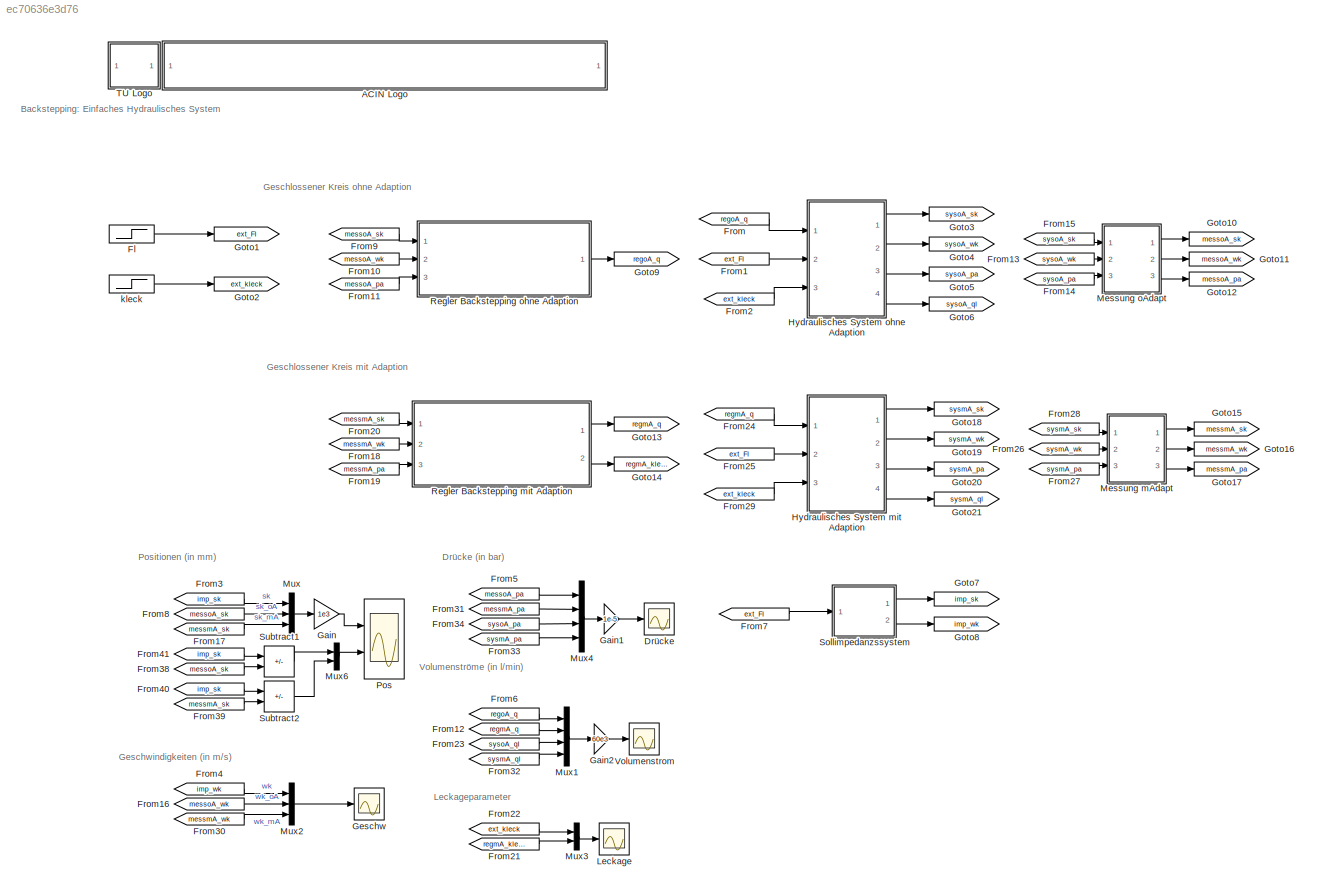
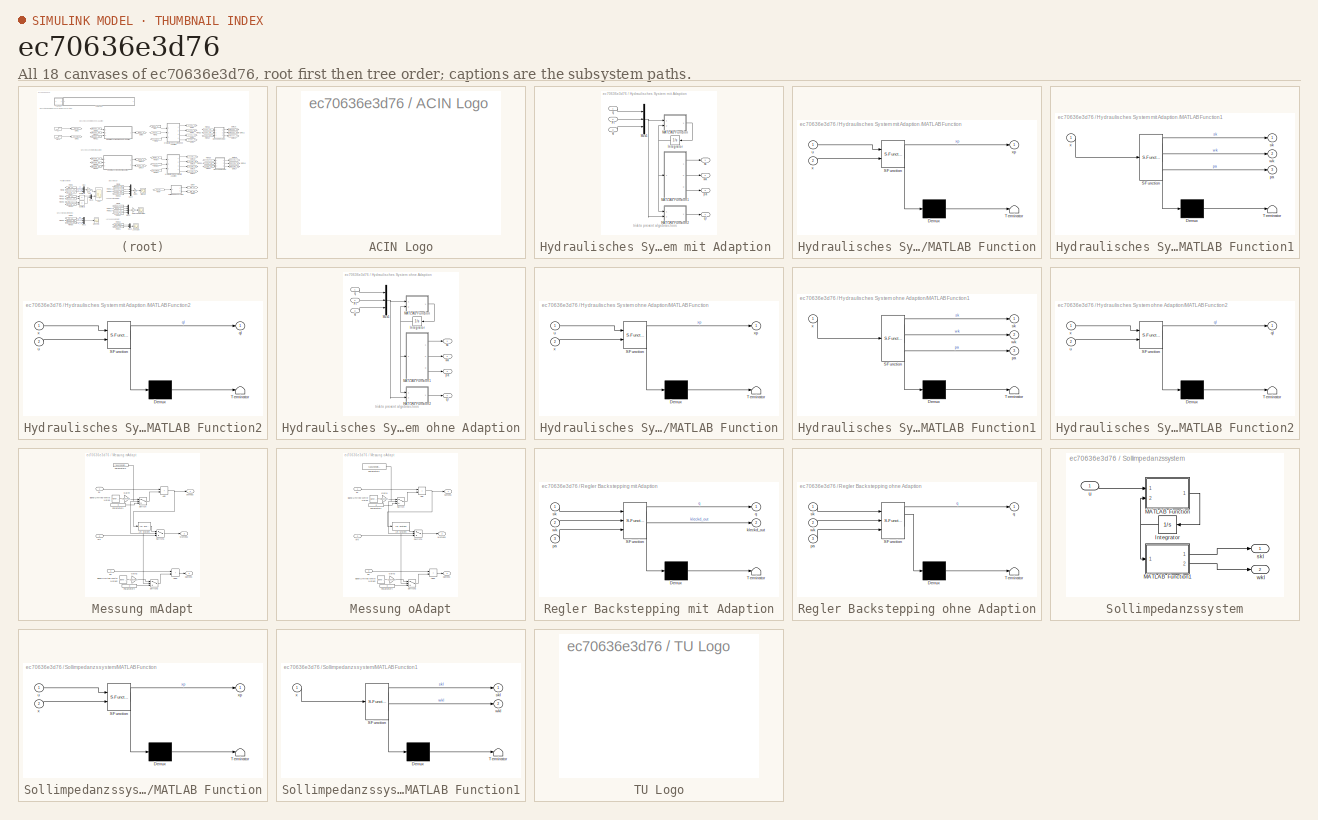
[diagram: thumbnail index - all 18 canvases of the model, root first then tree order]
MODEL slx_ec70636e3d76
KIND model
CONFIG AbsTol = 1e-5
CONFIG EnableMultiTasking = on
CONFIG FixedStep = auto
CONFIG MaxStep = auto
CONFIG MinStep = auto
CONFIG RelTol = 1e-6
CONFIG SampleTimeConstraint = Unconstrained
CONFIG SolverName = ode15s
CONFIG StartTime = 0.0
CONFIG StopTime = 10
BLOCK [SubSystem] ACIN Logo
  Ports = []
  RequestExecContextInheritance = off
  UserDataPersistent = on
BLOCK [Scope] Drücke
  Floating = off
  NumInputPorts = 1
  Ports = [1]
  ScopeSpecificationString = C++SS(StrPVP('Location','[5, 52, 1285, 993]'),StrPVP('Open','off'),MxPVP('AxesTitles',54,'struct(''axes1'',''%<SignalLabel>'')'),StrPVP('ShowLegends','off'),StrPVP('SaveName','ScopeData2'),StrPVP('DataFormat','StructureWithTime'),StrPVP('LimitDataPoints','off'),StrPVP('BlockParamSampleTime','0'),StrPVP('Decimation','1'),StrPVP('BlockParamSampleInput','off'))
BLOCK [Step] Fl
  After = 1e3
  SampleTime = 0
  Time = 3
BLOCK [From] From
  CloseFcn = tagdialog Close
  GotoTag = regoA_q
  TagVisibility = global
BLOCK [From] From1
  CloseFcn = tagdialog Close
  GotoTag = ext_Fl
  TagVisibility = global
BLOCK [From] From10
  CloseFcn = tagdialog Close
  GotoTag = messoA_wk
  TagVisibility = global
BLOCK [From] From11
  CloseFcn = tagdialog Close
  GotoTag = messoA_pa
  TagVisibility = global
BLOCK [From] From12
  CloseFcn = tagdialog Close
  GotoTag = regmA_q
  TagVisibility = global
BLOCK [From] From13
  CloseFcn = tagdialog Close
  GotoTag = sysoA_wk
  TagVisibility = global
BLOCK [From] From14
  CloseFcn = tagdialog Close
  GotoTag = sysoA_pa
  TagVisibility = global
BLOCK [From] From15
  CloseFcn = tagdialog Close
  GotoTag = sysoA_sk
  TagVisibility = global
BLOCK [From] From16
  CloseFcn = tagdialog Close
  GotoTag = messoA_wk
  TagVisibility = global
BLOCK [From] From17
  CloseFcn = tagdialog Close
  GotoTag = messmA_sk
  TagVisibility = global
BLOCK [From] From18
  CloseFcn = tagdialog Close
  GotoTag = messmA_wk
  TagVisibility = global
BLOCK [From] From19
  CloseFcn = tagdialog Close
  GotoTag = messmA_pa
  TagVisibility = global
BLOCK [From] From2
  CloseFcn = tagdialog Close
  GotoTag = ext_kleck
  TagVisibility = global
BLOCK [From] From20
  CloseFcn = tagdialog Close
  GotoTag = messmA_sk
  TagVisibility = global
BLOCK [From] From21
  CloseFcn = tagdialog Close
  GotoTag = regmA_kleckd
  TagVisibility = global
BLOCK [From] From22
  CloseFcn = tagdialog Close
  GotoTag = ext_kleck
  TagVisibility = global
BLOCK [From] From23
  CloseFcn = tagdialog Close
  GotoTag = sysoA_ql
  TagVisibility = global
BLOCK [From] From24
  CloseFcn = tagdialog Close
  GotoTag = regmA_q
  TagVisibility = global
BLOCK [From] From25
  CloseFcn = tagdialog Close
  GotoTag = ext_Fl
  TagVisibility = global
BLOCK [From] From26
  CloseFcn = tagdialog Close
  GotoTag = sysmA_wk
  TagVisibility = global
BLOCK [From] From27
  CloseFcn = tagdialog Close
  GotoTag = sysmA_pa
  TagVisibility = global
BLOCK [From] From28
  CloseFcn = tagdialog Close
  GotoTag = sysmA_sk
  TagVisibility = global
BLOCK [From] From29
  CloseFcn = tagdialog Close
  GotoTag = ext_kleck
  TagVisibility = global
BLOCK [From] From3
  CloseFcn = tagdialog Close
  GotoTag = imp_sk
  TagVisibility = global
BLOCK [From] From30
  CloseFcn = tagdialog Close
  GotoTag = messmA_wk
  TagVisibility = global
BLOCK [From] From31
  CloseFcn = tagdialog Close
  GotoTag = messmA_pa
  TagVisibility = global
BLOCK [From] From32
  CloseFcn = tagdialog Close
  GotoTag = sysmA_ql
  TagVisibility = global
BLOCK [From] From33
  CloseFcn = tagdialog Close
  GotoTag = sysmA_pa
  TagVisibility = global
BLOCK [From] From34
  CloseFcn = tagdialog Close
  GotoTag = sysoA_pa
  TagVisibility = global
BLOCK [From] From38
  CloseFcn = tagdialog Close
  GotoTag = messoA_sk
  TagVisibility = global
BLOCK [From] From39
  CloseFcn = tagdialog Close
  GotoTag = messmA_sk
  TagVisibility = global
BLOCK [From] From4
  CloseFcn = tagdialog Close
  GotoTag = imp_wk
  TagVisibility = global
BLOCK [From] From40
  CloseFcn = tagdialog Close
  GotoTag = imp_sk
  TagVisibility = global
BLOCK [From] From41
  CloseFcn = tagdialog Close
  GotoTag = imp_sk
  TagVisibility = global
BLOCK [From] From5
  CloseFcn = tagdialog Close
  GotoTag = messoA_pa
  TagVisibility = global
BLOCK [From] From6
  CloseFcn = tagdialog Close
  GotoTag = regoA_q
  TagVisibility = global
BLOCK [From] From7
  CloseFcn = tagdialog Close
  GotoTag = ext_Fl
  TagVisibility = global
BLOCK [From] From8
  CloseFcn = tagdialog Close
  GotoTag = messoA_sk
  TagVisibility = global
BLOCK [From] From9
  CloseFcn = tagdialog Close
  GotoTag = messoA_sk
  TagVisibility = global
BLOCK [Gain] Gain
  Gain = 1e3
BLOCK [Gain] Gain1
  Gain = 1e-5
BLOCK [Gain] Gain2
  Gain = 60e3
BLOCK [Scope] Geschw
  Floating = off
  NumInputPorts = 1
  Ports = [1]
  ScopeSpecificationString = Simulink.scopes.TimeScopeBlockCfg('CurrentConfiguration', extmgr.ConfigurationSet(extmgr.Configuration('Core','General UI',true),extmgr.Configuration('Core','Source UI',true),extmgr.Configuration('Sources','WiredSimulink',true,'DataLoggingVariableName','ScopeData1','DataLoggingSaveFormat','StructureWithTime','DataLoggingDecimation','1','DataLoggingDecimateData',true),extmgr.Configuration('Visuals'...<+1723ch>
BLOCK [Goto] Goto1
  GotoTag = ext_Fl
  TagVisibility = global
BLOCK [Goto] Goto10
  GotoTag = messoA_sk
  TagVisibility = global
BLOCK [Goto] Goto11
  GotoTag = messoA_wk
  TagVisibility = global
BLOCK [Goto] Goto12
  GotoTag = messoA_pa
  TagVisibility = global
BLOCK [Goto] Goto13
  GotoTag = regmA_q
  TagVisibility = global
BLOCK [Goto] Goto14
  GotoTag = regmA_kleckd
  TagVisibility = global
BLOCK [Goto] Goto15
  GotoTag = messmA_sk
  TagVisibility = global
BLOCK [Goto] Goto16
  GotoTag = messmA_wk
  TagVisibility = global
BLOCK [Goto] Goto17
  GotoTag = messmA_pa
  TagVisibility = global
BLOCK [Goto] Goto18
  GotoTag = sysmA_sk
  TagVisibility = global
BLOCK [Goto] Goto19
  GotoTag = sysmA_wk
  TagVisibility = global
BLOCK [Goto] Goto2
  GotoTag = ext_kleck
  TagVisibility = global
BLOCK [Goto] Goto20
  GotoTag = sysmA_pa
  TagVisibility = global
BLOCK [Goto] Goto21
  GotoTag = sysmA_ql
  TagVisibility = global
BLOCK [Goto] Goto3
  GotoTag = sysoA_sk
  TagVisibility = global
BLOCK [Goto] Goto4
  GotoTag = sysoA_wk
  TagVisibility = global
BLOCK [Goto] Goto5
  GotoTag = sysoA_pa
  TagVisibility = global
BLOCK [Goto] Goto6
  GotoTag = sysoA_ql
  TagVisibility = global
BLOCK [Goto] Goto7
  GotoTag = imp_sk
  TagVisibility = global
BLOCK [Goto] Goto8
  GotoTag = imp_wk
  TagVisibility = global
BLOCK [Goto] Goto9
  GotoTag = regoA_q
  TagVisibility = global
BLOCK [SubSystem] Hydraulisches System mit Adaption 
  Ports = [3, 4]
  RequestExecContextInheritance = off
BLOCK [Inport] Hydraulisches System mit Adaption /Fl
  Port = 2
BLOCK [Integrator] Hydraulisches System mit Adaption /Integrator
  InitialCondition = [parSys.sk0; parSys.wk0; parSys.pa0]
  Ports = [1, 1]
BLOCK [SubSystem] Hydraulisches System mit Adaption /MATLAB Function
  ErrorFcn = Stateflow.Translate.translate
  PermitHierarchicalResolution = ExplicitOnly
  Ports = [2, 1]
  RequestExecContextInheritance = off
  SFBlockType = MATLAB Function
  TreatAsAtomicUnit = on
BLOCK [Demux] Hydraulisches System mit Adaption /MATLAB Function/ Demux 
  Outputs = 1
  Ports = [1, 1]
BLOCK [S-Function] Hydraulisches System mit Adaption /MATLAB Function/ SFunction 
  EnableBusSupport = on
  FunctionName = sf_sfun
  Parameters = parSys
  PortCounts = [2 2]
  Ports = [2, 2]
  SFcnIsStateOwnerBlock = off
  SFunctionDeploymentMode = off
  Tag = Stateflow S-Function 3
BLOCK [Terminator] Hydraulisches System mit Adaption /MATLAB Function/ Terminator 
BLOCK [Inport] Hydraulisches System mit Adaption /MATLAB Function/u
BLOCK [Inport] Hydraulisches System mit Adaption /MATLAB Function/x
  Port = 2
BLOCK [Outport] Hydraulisches System mit Adaption /MATLAB Function/xp
BLOCK [SubSystem] Hydraulisches System mit Adaption /MATLAB Function1
  ErrorFcn = Stateflow.Translate.translate
  PermitHierarchicalResolution = ExplicitOnly
  Ports = [1, 3]
  RequestExecContextInheritance = off
  SFBlockType = MATLAB Function
  TreatAsAtomicUnit = on
BLOCK [Demux] Hydraulisches System mit Adaption /MATLAB Function1/ Demux 
  Outputs = 1
  Ports = [1, 1]
BLOCK [S-Function] Hydraulisches System mit Adaption /MATLAB Function1/ SFunction 
  EnableBusSupport = on
  FunctionName = sf_sfun
  Parameters = parSys
  PortCounts = [1 4]
  Ports = [1, 4]
  SFcnIsStateOwnerBlock = off
  SFunctionDeploymentMode = off
  Tag = Stateflow S-Function 4
BLOCK [Terminator] Hydraulisches System mit Adaption /MATLAB Function1/ Terminator 
BLOCK [Outport] Hydraulisches System mit Adaption /MATLAB Function1/pa
  Port = 3
BLOCK [Outport] Hydraulisches System mit Adaption /MATLAB Function1/sk
BLOCK [Outport] Hydraulisches System mit Adaption /MATLAB Function1/wk
  Port = 2
BLOCK [Inport] Hydraulisches System mit Adaption /MATLAB Function1/x
BLOCK [SubSystem] Hydraulisches System mit Adaption /MATLAB Function2
  ErrorFcn = Stateflow.Translate.translate
  PermitHierarchicalResolution = ExplicitOnly
  Ports = [2, 1]
  RequestExecContextInheritance = off
  SFBlockType = MATLAB Function
  TreatAsAtomicUnit = on
BLOCK [Demux] Hydraulisches System mit Adaption /MATLAB Function2/ Demux 
  Outputs = 1
  Ports = [1, 1]
BLOCK [S-Function] Hydraulisches System mit Adaption /MATLAB Function2/ SFunction 
  EnableBusSupport = on
  FunctionName = sf_sfun
  Parameters = parSys
  PortCounts = [2 2]
  Ports = [2, 2]
  SFcnIsStateOwnerBlock = off
  SFunctionDeploymentMode = off
  Tag = Stateflow S-Function 7
BLOCK [Terminator] Hydraulisches System mit Adaption /MATLAB Function2/ Terminator 
BLOCK [Outport] Hydraulisches System mit Adaption /MATLAB Function2/ql
BLOCK [Inport] Hydraulisches System mit Adaption /MATLAB Function2/u
  Port = 2
BLOCK [Inport] Hydraulisches System mit Adaption /MATLAB Function2/x
BLOCK [Mux] Hydraulisches System mit Adaption /Mux5
  DisplayOption = bar
  Inputs = 3
  Ports = [3, 1]
BLOCK [Inport] Hydraulisches System mit Adaption /kl
  Port = 3
BLOCK [Outport] Hydraulisches System mit Adaption /pa
  Port = 3
BLOCK [Inport] Hydraulisches System mit Adaption /q
BLOCK [Outport] Hydraulisches System mit Adaption /ql
  Port = 4
BLOCK [Outport] Hydraulisches System mit Adaption /sk
BLOCK [Outport] Hydraulisches System mit Adaption /wk
  Port = 2
BLOCK [SubSystem] Hydraulisches System ohne Adaption
  Ports = [3, 4]
  RequestExecContextInheritance = off
BLOCK [Inport] Hydraulisches System ohne Adaption/Fl
  Port = 2
BLOCK [Integrator] Hydraulisches System ohne Adaption/Integrator
  InitialCondition = [parSys.sk0; parSys.wk0; parSys.pa0]
  Ports = [1, 1]
BLOCK [SubSystem] Hydraulisches System ohne Adaption/MATLAB Function
  ErrorFcn = Stateflow.Translate.translate
  PermitHierarchicalResolution = ExplicitOnly
  Ports = [2, 1]
  RequestExecContextInheritance = off
  SFBlockType = MATLAB Function
  TreatAsAtomicUnit = on
BLOCK [Demux] Hydraulisches System ohne Adaption/MATLAB Function/ Demux 
  Outputs = 1
  Ports = [1, 1]
BLOCK [S-Function] Hydraulisches System ohne Adaption/MATLAB Function/ SFunction 
  EnableBusSupport = on
  FunctionName = sf_sfun
  Parameters = parSys
  PortCounts = [2 2]
  Ports = [2, 2]
  SFcnIsStateOwnerBlock = off
  SFunctionDeploymentMode = off
  Tag = Stateflow S-Function 5
BLOCK [Terminator] Hydraulisches System ohne Adaption/MATLAB Function/ Terminator 
BLOCK [Inport] Hydraulisches System ohne Adaption/MATLAB Function/u
BLOCK [Inport] Hydraulisches System ohne Adaption/MATLAB Function/x
  Port = 2
BLOCK [Outport] Hydraulisches System ohne Adaption/MATLAB Function/xp
BLOCK [SubSystem] Hydraulisches System ohne Adaption/MATLAB Function1
  ErrorFcn = Stateflow.Translate.translate
  PermitHierarchicalResolution = ExplicitOnly
  Ports = [1, 3]
  RequestExecContextInheritance = off
  SFBlockType = MATLAB Function
  TreatAsAtomicUnit = on
BLOCK [Demux] Hydraulisches System ohne Adaption/MATLAB Function1/ Demux 
  Outputs = 1
  Ports = [1, 1]
BLOCK [S-Function] Hydraulisches System ohne Adaption/MATLAB Function1/ SFunction 
  EnableBusSupport = on
  FunctionName = sf_sfun
  Parameters = parSys
  PortCounts = [1 4]
  Ports = [1, 4]
  SFcnIsStateOwnerBlock = off
  SFunctionDeploymentMode = off
  Tag = Stateflow S-Function 6
BLOCK [Terminator] Hydraulisches System ohne Adaption/MATLAB Function1/ Terminator 
BLOCK [Outport] Hydraulisches System ohne Adaption/MATLAB Function1/pa
  Port = 3
BLOCK [Outport] Hydraulisches System ohne Adaption/MATLAB Function1/sk
BLOCK [Outport] Hydraulisches System ohne Adaption/MATLAB Function1/wk
  Port = 2
BLOCK [Inport] Hydraulisches System ohne Adaption/MATLAB Function1/x
BLOCK [SubSystem] Hydraulisches System ohne Adaption/MATLAB Function2
  ErrorFcn = Stateflow.Translate.translate
  PermitHierarchicalResolution = ExplicitOnly
  Ports = [2, 1]
  RequestExecContextInheritance = off
  SFBlockType = MATLAB Function
  TreatAsAtomicUnit = on
BLOCK [Demux] Hydraulisches System ohne Adaption/MATLAB Function2/ Demux 
  Outputs = 1
  Ports = [1, 1]
BLOCK [S-Function] Hydraulisches System ohne Adaption/MATLAB Function2/ SFunction 
  EnableBusSupport = on
  FunctionName = sf_sfun
  Parameters = parSys
  PortCounts = [2 2]
  Ports = [2, 2]
  SFcnIsStateOwnerBlock = off
  SFunctionDeploymentMode = off
  Tag = Stateflow S-Function 8
BLOCK [Terminator] Hydraulisches System ohne Adaption/MATLAB Function2/ Terminator 
BLOCK [Outport] Hydraulisches System ohne Adaption/MATLAB Function2/ql
BLOCK [Inport] Hydraulisches System ohne Adaption/MATLAB Function2/u
  Port = 2
BLOCK [Inport] Hydraulisches System ohne Adaption/MATLAB Function2/x
BLOCK [Mux] Hydraulisches System ohne Adaption/Mux5
  DisplayOption = bar
  Inputs = 3
  Ports = [3, 1]
BLOCK [Inport] Hydraulisches System ohne Adaption/kl
  Port = 3
BLOCK [Outport] Hydraulisches System ohne Adaption/pa
  Port = 3
BLOCK [Inport] Hydraulisches System ohne Adaption/q
BLOCK [Outport] Hydraulisches System ohne Adaption/ql
  Port = 4
BLOCK [Outport] Hydraulisches System ohne Adaption/sk
BLOCK [Outport] Hydraulisches System ohne Adaption/wk
  Port = 2
BLOCK [Scope] Leckage
  Floating = off
  NumInputPorts = 1
  Ports = [1]
  ScopeSpecificationString = Simulink.scopes.TimeScopeBlockCfg('CurrentConfiguration', extmgr.ConfigurationSet(extmgr.Configuration('Core','General UI',true),extmgr.Configuration('Core','Source UI',true),extmgr.Configuration('Sources','WiredSimulink',true,'DataLoggingVariableName','ScopeData8','DataLoggingSaveFormat','StructureWithTime','DataLoggingDecimation','1','DataLoggingDecimateData',true),extmgr.Configuration('Visuals'...<+1750ch>
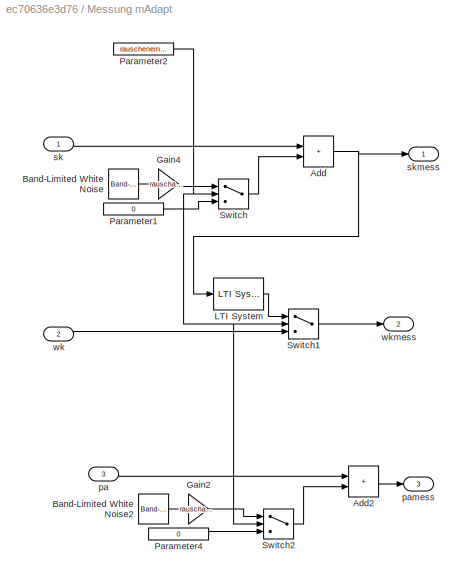
BLOCK [SubSystem] Messung mAdapt
  Ports = [3, 3]
  RequestExecContextInheritance = off
BLOCK [Sum] Messung mAdapt/Add
  IconShape = rectangular
  Ports = [2, 1]
BLOCK [Sum] Messung mAdapt/Add2
  IconShape = rectangular
  Ports = [2, 1]
BLOCK [Reference] Messung mAdapt/Band-Limited White Noise  REF=simulink/Sources/Band-Limited
White Noise
  Ports = [0, 1]
  SourceBlock = simulink/Sources/Band-Limited\nWhite Noise
  SourceProductBaseCode = SL
  SourceType = Band-Limited White Noise.
BLOCK [Reference] Messung mAdapt/Band-Limited White Noise2  REF=simulink/Sources/Band-Limited
White Noise
  Ports = [0, 1]
  SourceBlock = simulink/Sources/Band-Limited\nWhite Noise
  SourceProductBaseCode = SL
  SourceType = Band-Limited White Noise.
BLOCK [Gain] Messung mAdapt/Gain2
  Gain = rauschampl_pa
BLOCK [Gain] Messung mAdapt/Gain4
  Gain = rauschampl_sk
BLOCK [Reference] Messung mAdapt/LTI System  REF=cstblocks/LTI System
  Ports = [1, 1]
  SourceBlock = cstblocks/LTI System
  SourceProductBaseCode = CT
  SourceType = LTI Block
BLOCK [Constant] Messung mAdapt/Parameter1
  Value = 0
  VectorParams1D = off
BLOCK [Constant] Messung mAdapt/Parameter2
  Value = rauschenein_par
  VectorParams1D = off
BLOCK [Constant] Messung mAdapt/Parameter4
  Value = 0
  VectorParams1D = off
BLOCK [Switch] Messung mAdapt/Switch
  InputSameDT = off
  SaturateOnIntegerOverflow = off
  Threshold = 0.5
BLOCK [Switch] Messung mAdapt/Switch1
  InputSameDT = off
  SaturateOnIntegerOverflow = off
  Threshold = 0.5
BLOCK [Switch] Messung mAdapt/Switch2
  InputSameDT = off
  SaturateOnIntegerOverflow = off
  Threshold = 0.5
BLOCK [Inport] Messung mAdapt/pa
  Port = 3
BLOCK [Outport] Messung mAdapt/pamess
  Port = 3
BLOCK [Inport] Messung mAdapt/sk
BLOCK [Outport] Messung mAdapt/skmess
BLOCK [Inport] Messung mAdapt/wk
  Port = 2
BLOCK [Outport] Messung mAdapt/wkmess
  Port = 2
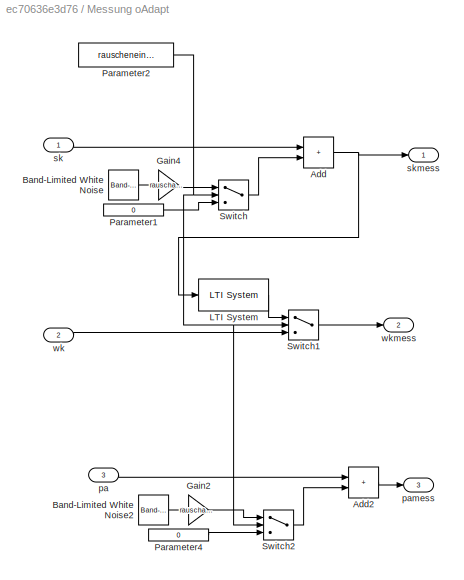
BLOCK [SubSystem] Messung oAdapt
  Ports = [3, 3]
  RequestExecContextInheritance = off
BLOCK [Sum] Messung oAdapt/Add
  IconShape = rectangular
  Ports = [2, 1]
BLOCK [Sum] Messung oAdapt/Add2
  IconShape = rectangular
  Ports = [2, 1]
BLOCK [Reference] Messung oAdapt/Band-Limited White Noise  REF=simulink/Sources/Band-Limited
White Noise
  Ports = [0, 1]
  SourceBlock = simulink/Sources/Band-Limited\nWhite Noise
  SourceProductBaseCode = SL
  SourceType = Band-Limited White Noise.
BLOCK [Reference] Messung oAdapt/Band-Limited White Noise2  REF=simulink/Sources/Band-Limited
White Noise
  Ports = [0, 1]
  SourceBlock = simulink/Sources/Band-Limited\nWhite Noise
  SourceProductBaseCode = SL
  SourceType = Band-Limited White Noise.
BLOCK [Gain] Messung oAdapt/Gain2
  Gain = rauschampl_pa
BLOCK [Gain] Messung oAdapt/Gain4
  Gain = rauschampl_sk
BLOCK [Reference] Messung oAdapt/LTI System  REF=cstblocks/LTI System
  Ports = [1, 1]
  SourceBlock = cstblocks/LTI System
  SourceProductBaseCode = CT
  SourceType = LTI Block
BLOCK [Constant] Messung oAdapt/Parameter1
  Value = 0
  VectorParams1D = off
BLOCK [Constant] Messung oAdapt/Parameter2
  Value = rauschenein_par
  VectorParams1D = off
BLOCK [Constant] Messung oAdapt/Parameter4
  Value = 0
  VectorParams1D = off
BLOCK [Switch] Messung oAdapt/Switch
  InputSameDT = off
  SaturateOnIntegerOverflow = off
  Threshold = 0.5
BLOCK [Switch] Messung oAdapt/Switch1
  InputSameDT = off
  SaturateOnIntegerOverflow = off
  Threshold = 0.5
BLOCK [Switch] Messung oAdapt/Switch2
  InputSameDT = off
  SaturateOnIntegerOverflow = off
  Threshold = 0.5
BLOCK [Inport] Messung oAdapt/pa
  Port = 3
BLOCK [Outport] Messung oAdapt/pamess
  Port = 3
BLOCK [Inport] Messung oAdapt/sk
BLOCK [Outport] Messung oAdapt/skmess
BLOCK [Inport] Messung oAdapt/wk
  Port = 2
BLOCK [Outport] Messung oAdapt/wkmess
  Port = 2
BLOCK [Mux] Mux
  DisplayOption = bar
  Inputs = 3
  Ports = [3, 1]
BLOCK [Mux] Mux1
  DisplayOption = bar
  Ports = [4, 1]
BLOCK [Mux] Mux2
  DisplayOption = bar
  Inputs = 3
  Ports = [3, 1]
BLOCK [Mux] Mux3
  DisplayOption = bar
  Inputs = 2
  Ports = [2, 1]
BLOCK [Mux] Mux4
  DisplayOption = bar
  Ports = [4, 1]
BLOCK [Mux] Mux6
  DisplayOption = bar
  Inputs = 2
  Ports = [2, 1]
BLOCK [Scope] Pos
  Floating = off
  NumInputPorts = 2
  Ports = [2]
  ScopeSpecificationString = Simulink.scopes.TimeScopeBlockCfg('CurrentConfiguration', extmgr.ConfigurationSet(extmgr.Configuration('Core','General UI',true),extmgr.Configuration('Core','Source UI',true),extmgr.Configuration('Sources','WiredSimulink',true,'DataLoggingSaveFormat','StructureWithTime','DataLoggingDecimation','1','DataLoggingDecimateData',true),extmgr.Configuration('Visuals','Time Domain',true,'SerializedDisplays...<+2383ch>
BLOCK [SubSystem] Regler Backstepping mit Adaption
  ErrorFcn = Stateflow.Translate.translate
  PermitHierarchicalResolution = ExplicitOnly
  Ports = [3, 2]
  RequestExecContextInheritance = off
  SFBlockType = MATLAB Function
BLOCK [Demux] Regler Backstepping mit Adaption/ Demux 
  Outputs = 1
  Ports = [1, 1]
BLOCK [S-Function] Regler Backstepping mit Adaption/ SFunction 
  EnableBusSupport = on
  FunctionName = sf_sfun
  Parameters = parImp,parRegA,parSys
  PortCounts = [3 3]
  Ports = [3, 3]
  SFcnIsStateOwnerBlock = off
  SFunctionDeploymentMode = off
  Tag = Stateflow S-Function 1
BLOCK [Terminator] Regler Backstepping mit Adaption/ Terminator 
BLOCK [Outport] Regler Backstepping mit Adaption/kleckd_out
  Port = 2
BLOCK [Inport] Regler Backstepping mit Adaption/pa
  Port = 3
BLOCK [Outport] Regler Backstepping mit Adaption/q
BLOCK [Inport] Regler Backstepping mit Adaption/sk
BLOCK [Inport] Regler Backstepping mit Adaption/wk
  Port = 2
BLOCK [SubSystem] Regler Backstepping ohne Adaption
  ErrorFcn = Stateflow.Translate.translate
  PermitHierarchicalResolution = ExplicitOnly
  Ports = [3, 1]
  RequestExecContextInheritance = off
  SFBlockType = MATLAB Function
  TreatAsAtomicUnit = on
BLOCK [Demux] Regler Backstepping ohne Adaption/ Demux 
  Outputs = 1
  Ports = [1, 1]
BLOCK [S-Function] Regler Backstepping ohne Adaption/ SFunction 
  EnableBusSupport = on
  FunctionName = sf_sfun
  Parameters = parImp,parRegoA,parSys
  PortCounts = [3 2]
  Ports = [3, 2]
  SFcnIsStateOwnerBlock = off
  SFunctionDeploymentMode = off
  Tag = Stateflow S-Function 2
BLOCK [Terminator] Regler Backstepping ohne Adaption/ Terminator 
BLOCK [Inport] Regler Backstepping ohne Adaption/pa
  Port = 3
BLOCK [Outport] Regler Backstepping ohne Adaption/q
BLOCK [Inport] Regler Backstepping ohne Adaption/sk
BLOCK [Inport] Regler Backstepping ohne Adaption/wk
  Port = 2
BLOCK [SubSystem] Sollimpedanzssystem
  Ports = [1, 2]
  RequestExecContextInheritance = off
BLOCK [Integrator] Sollimpedanzssystem/Integrator
  InitialCondition = [parSys.sk0; parSys.wk0]
  Ports = [1, 1]
BLOCK [SubSystem] Sollimpedanzssystem/MATLAB Function
  ErrorFcn = Stateflow.Translate.translate
  PermitHierarchicalResolution = ExplicitOnly
  Ports = [2, 1]
  RequestExecContextInheritance = off
  SFBlockType = MATLAB Function
  TreatAsAtomicUnit = on
BLOCK [Demux] Sollimpedanzssystem/MATLAB Function/ Demux 
  Outputs = 1
  Ports = [1, 1]
BLOCK [S-Function] Sollimpedanzssystem/MATLAB Function/ SFunction 
  EnableBusSupport = on
  FunctionName = sf_sfun
  Parameters = parImp,parSys
  PortCounts = [2 2]
  Ports = [2, 2]
  SFcnIsStateOwnerBlock = off
  SFunctionDeploymentMode = off
  Tag = Stateflow S-Function 11
BLOCK [Terminator] Sollimpedanzssystem/MATLAB Function/ Terminator 
BLOCK [Inport] Sollimpedanzssystem/MATLAB Function/u
BLOCK [Inport] Sollimpedanzssystem/MATLAB Function/x
  Port = 2
BLOCK [Outport] Sollimpedanzssystem/MATLAB Function/xp
BLOCK [SubSystem] Sollimpedanzssystem/MATLAB Function1
  ErrorFcn = Stateflow.Translate.translate
  PermitHierarchicalResolution = ExplicitOnly
  Ports = [1, 2]
  RequestExecContextInheritance = off
  SFBlockType = MATLAB Function
  TreatAsAtomicUnit = on
BLOCK [Demux] Sollimpedanzssystem/MATLAB Function1/ Demux 
  Outputs = 1
  Ports = [1, 1]
BLOCK [S-Function] Sollimpedanzssystem/MATLAB Function1/ SFunction 
  EnableBusSupport = on
  FunctionName = sf_sfun
  PortCounts = [1 3]
  Ports = [1, 3]
  SFcnIsStateOwnerBlock = off
  SFunctionDeploymentMode = off
  Tag = Stateflow S-Function 12
BLOCK [Terminator] Sollimpedanzssystem/MATLAB Function1/ Terminator 
BLOCK [Outport] Sollimpedanzssystem/MATLAB Function1/skl
BLOCK [Outport] Sollimpedanzssystem/MATLAB Function1/wkl
  Port = 2
BLOCK [Inport] Sollimpedanzssystem/MATLAB Function1/x
BLOCK [Outport] Sollimpedanzssystem/skl
BLOCK [Inport] Sollimpedanzssystem/u
BLOCK [Outport] Sollimpedanzssystem/wkl
  Port = 2
BLOCK [Sum] Subtract1
  IconShape = rectangular
  Inputs = +-
  Ports = [2, 1]
BLOCK [Sum] Subtract2
  IconShape = rectangular
  Inputs = +-
  Ports = [2, 1]
BLOCK [SubSystem] TU Logo
  Ports = []
  RequestExecContextInheritance = off
  UserDataPersistent = on
BLOCK [Scope] Volumenstrom
  Floating = off
  NumInputPorts = 1
  Ports = [1]
  ScopeSpecificationString = Simulink.scopes.TimeScopeBlockCfg('CurrentConfiguration', extmgr.ConfigurationSet(extmgr.Configuration('Core','General UI',true),extmgr.Configuration('Core','Source UI',true),extmgr.Configuration('Sources','WiredSimulink',true,'DataLoggingVariableName','ScopeData3','DataLoggingSaveFormat','StructureWithTime','DataLoggingDecimation','1','DataLoggingDecimateData',true),extmgr.Configuration('Visuals'...<+1702ch>
BLOCK [Step] kleck
  After = parSys.klecknom
  Before = parSys.klecknom*1
  SampleTime = 0
ANNOTATION (root): Backstepping: Einfaches Hydraulisches System
ANNOTATION (root): Drücke (in bar)
ANNOTATION (root): Geschlossener Kreis mit Adaption
ANNOTATION (root): Geschlossener Kreis ohne Adaption
ANNOTATION (root): Geschwindigkeiten (in m/s)
ANNOTATION (root): Leckageparameter
ANNOTATION (root): Positionen (in mm)
ANNOTATION (root): Volumenströme (in l/min)
ANNOTATION Hydraulisches System mit Adaption : trick to prevent algebraic loos
ANNOTATION Hydraulisches System ohne Adaption: trick to prevent algebraic loos
LINE Fl:1 -> Goto1:1
LINE From10:1 -> Regler Backstepping ohne Adaption:2
LINE From11:1 -> Regler Backstepping ohne Adaption:3
LINE From12:1 -> Mux1:2
LINE From13:1 -> Messung oAdapt:2
LINE From14:1 -> Messung oAdapt:3
LINE From15:1 -> Messung oAdapt:1
LINE From16:1 -> Mux2:2
LINE From17:1 -> Mux:3
LINE From18:1 -> Regler Backstepping mit Adaption:2
LINE From19:1 -> Regler Backstepping mit Adaption:3
LINE From1:1 -> Hydraulisches System ohne Adaption:2
LINE From20:1 -> Regler Backstepping mit Adaption:1
LINE From21:1 -> Mux3:2
LINE From22:1 -> Mux3:1
LINE From23:1 -> Mux1:3
LINE From24:1 -> Hydraulisches System mit Adaption :1
LINE From25:1 -> Hydraulisches System mit Adaption :2
LINE From26:1 -> Messung mAdapt:2
LINE From27:1 -> Messung mAdapt:3
LINE From28:1 -> Messung mAdapt:1
LINE From29:1 -> Hydraulisches System mit Adaption :3
LINE From2:1 -> Hydraulisches System ohne Adaption:3
LINE From30:1 -> Mux2:3
LINE From31:1 -> Mux4:2
LINE From32:1 -> Mux1:4
LINE From33:1 -> Mux4:4
LINE From34:1 -> Mux4:3
LINE From38:1 -> Subtract1:2
LINE From39:1 -> Subtract2:2
LINE From3:1 -> Mux:1
LINE From40:1 -> Subtract2:1
LINE From41:1 -> Subtract1:1
LINE From4:1 -> Mux2:1
LINE From5:1 -> Mux4:1
LINE From6:1 -> Mux1:1
LINE From7:1 -> Sollimpedanzssystem:1
LINE From8:1 -> Mux:2
LINE From9:1 -> Regler Backstepping ohne Adaption:1
LINE From:1 -> Hydraulisches System ohne Adaption:1
LINE Gain1:1 -> Drücke:1
LINE Gain2:1 -> Volumenstrom:1
LINE Gain:1 -> Pos:1
LINE Hydraulisches System mit Adaption /Fl:1 -> Hydraulisches System mit Adaption /Mux5:2
NET Hydraulisches System mit Adaption /Integrator:1 -> Hydraulisches System mit Adaption /MATLAB Function1:1, Hydraulisches System mit Adaption /MATLAB Function2:1, Hydraulisches System mit Adaption /MATLAB Function:2
LINE Hydraulisches System mit Adaption /MATLAB Function1:1 -> Hydraulisches System mit Adaption /sk:1
LINE Hydraulisches System mit Adaption /MATLAB Function1:2 -> Hydraulisches System mit Adaption /wk:1
LINE Hydraulisches System mit Adaption /MATLAB Function1:3 -> Hydraulisches System mit Adaption /pa:1
LINE Hydraulisches System mit Adaption /MATLAB Function2:1 -> Hydraulisches System mit Adaption /ql:1
LINE Hydraulisches System mit Adaption /MATLAB Function:1 -> Hydraulisches System mit Adaption /Integrator:1
NET Hydraulisches System mit Adaption /Mux5:1 -> Hydraulisches System mit Adaption /MATLAB Function2:2, Hydraulisches System mit Adaption /MATLAB Function:1
LINE Hydraulisches System mit Adaption /kl:1 -> Hydraulisches System mit Adaption /Mux5:3
LINE Hydraulisches System mit Adaption /q:1 -> Hydraulisches System mit Adaption /Mux5:1
LINE Hydraulisches System mit Adaption :1 -> Goto18:1
LINE Hydraulisches System mit Adaption :2 -> Goto19:1
LINE Hydraulisches System mit Adaption :3 -> Goto20:1
LINE Hydraulisches System mit Adaption :4 -> Goto21:1
LINE Hydraulisches System ohne Adaption/Fl:1 -> Hydraulisches System ohne Adaption/Mux5:2
NET Hydraulisches System ohne Adaption/Integrator:1 -> Hydraulisches System ohne Adaption/MATLAB Function1:1, Hydraulisches System ohne Adaption/MATLAB Function2:1, Hydraulisches System ohne Adaption/MATLAB Function:2
LINE Hydraulisches System ohne Adaption/MATLAB Function1:1 -> Hydraulisches System ohne Adaption/sk:1
LINE Hydraulisches System ohne Adaption/MATLAB Function1:2 -> Hydraulisches System ohne Adaption/wk:1
LINE Hydraulisches System ohne Adaption/MATLAB Function1:3 -> Hydraulisches System ohne Adaption/pa:1
LINE Hydraulisches System ohne Adaption/MATLAB Function2:1 -> Hydraulisches System ohne Adaption/ql:1
LINE Hydraulisches System ohne Adaption/MATLAB Function:1 -> Hydraulisches System ohne Adaption/Integrator:1
NET Hydraulisches System ohne Adaption/Mux5:1 -> Hydraulisches System ohne Adaption/MATLAB Function2:2, Hydraulisches System ohne Adaption/MATLAB Function:1
LINE Hydraulisches System ohne Adaption/kl:1 -> Hydraulisches System ohne Adaption/Mux5:3
LINE Hydraulisches System ohne Adaption/q:1 -> Hydraulisches System ohne Adaption/Mux5:1
LINE Hydraulisches System ohne Adaption:1 -> Goto3:1
LINE Hydraulisches System ohne Adaption:2 -> Goto4:1
LINE Hydraulisches System ohne Adaption:3 -> Goto5:1
LINE Hydraulisches System ohne Adaption:4 -> Goto6:1
LINE Messung mAdapt/Add2:1 -> Messung mAdapt/pamess:1
NET Messung mAdapt/Add:1 -> Messung mAdapt/LTI System:1, Messung mAdapt/skmess:1
LINE Messung mAdapt/Band-Limited White Noise2:1 -> Messung mAdapt/Gain2:1
LINE Messung mAdapt/Band-Limited White Noise:1 -> Messung mAdapt/Gain4:1
LINE Messung mAdapt/Gain2:1 -> Messung mAdapt/Switch2:1
LINE Messung mAdapt/Gain4:1 -> Messung mAdapt/Switch:1
LINE Messung mAdapt/LTI System:1 -> Messung mAdapt/Switch1:1
LINE Messung mAdapt/Parameter1:1 -> Messung mAdapt/Switch:3
NET Messung mAdapt/Parameter2:1 -> Messung mAdapt/Switch1:2, Messung mAdapt/Switch2:2, Messung mAdapt/Switch:2
LINE Messung mAdapt/Parameter4:1 -> Messung mAdapt/Switch2:3
LINE Messung mAdapt/Switch1:1 -> Messung mAdapt/wkmess:1
LINE Messung mAdapt/Switch2:1 -> Messung mAdapt/Add2:2
LINE Messung mAdapt/Switch:1 -> Messung mAdapt/Add:2
LINE Messung mAdapt/pa:1 -> Messung mAdapt/Add2:1
LINE Messung mAdapt/sk:1 -> Messung mAdapt/Add:1
LINE Messung mAdapt/wk:1 -> Messung mAdapt/Switch1:3
LINE Messung mAdapt:1 -> Goto15:1
LINE Messung mAdapt:2 -> Goto16:1
LINE Messung mAdapt:3 -> Goto17:1
LINE Messung oAdapt/Add2:1 -> Messung oAdapt/pamess:1
NET Messung oAdapt/Add:1 -> Messung oAdapt/LTI System:1, Messung oAdapt/skmess:1
LINE Messung oAdapt/Band-Limited White Noise2:1 -> Messung oAdapt/Gain2:1
LINE Messung oAdapt/Band-Limited White Noise:1 -> Messung oAdapt/Gain4:1
LINE Messung oAdapt/Gain2:1 -> Messung oAdapt/Switch2:1
LINE Messung oAdapt/Gain4:1 -> Messung oAdapt/Switch:1
LINE Messung oAdapt/LTI System:1 -> Messung oAdapt/Switch1:1
LINE Messung oAdapt/Parameter1:1 -> Messung oAdapt/Switch:3
NET Messung oAdapt/Parameter2:1 -> Messung oAdapt/Switch1:2, Messung oAdapt/Switch2:2, Messung oAdapt/Switch:2
LINE Messung oAdapt/Parameter4:1 -> Messung oAdapt/Switch2:3
LINE Messung oAdapt/Switch1:1 -> Messung oAdapt/wkmess:1
LINE Messung oAdapt/Switch2:1 -> Messung oAdapt/Add2:2
LINE Messung oAdapt/Switch:1 -> Messung oAdapt/Add:2
LINE Messung oAdapt/pa:1 -> Messung oAdapt/Add2:1
LINE Messung oAdapt/sk:1 -> Messung oAdapt/Add:1
LINE Messung oAdapt/wk:1 -> Messung oAdapt/Switch1:3
LINE Messung oAdapt:1 -> Goto10:1
LINE Messung oAdapt:2 -> Goto11:1
LINE Messung oAdapt:3 -> Goto12:1
LINE Mux1:1 -> Gain2:1
LINE Mux2:1 -> Geschw:1
LINE Mux3:1 -> Leckage:1
LINE Mux4:1 -> Gain1:1
LINE Mux6:1 -> Pos:2
LINE Mux:1 -> Gain:1
LINE Regler Backstepping mit Adaption:1 -> Goto13:1
LINE Regler Backstepping mit Adaption:2 -> Goto14:1
LINE Regler Backstepping ohne Adaption:1 -> Goto9:1
NET Sollimpedanzssystem/Integrator:1 -> Sollimpedanzssystem/MATLAB Function1:1, Sollimpedanzssystem/MATLAB Function:2
LINE Sollimpedanzssystem/MATLAB Function1:1 -> Sollimpedanzssystem/skl:1
LINE Sollimpedanzssystem/MATLAB Function1:2 -> Sollimpedanzssystem/wkl:1
LINE Sollimpedanzssystem/MATLAB Function:1 -> Sollimpedanzssystem/Integrator:1
LINE Sollimpedanzssystem/u:1 -> Sollimpedanzssystem/MATLAB Function:1
LINE Sollimpedanzssystem:1 -> Goto7:1
LINE Sollimpedanzssystem:2 -> Goto8:1
LINE Subtract1:1 -> Mux6:1
LINE Subtract2:1 -> Mux6:2
LINE kleck:1 -> Goto2:1
note: NET lines group one-source signal fan-out (src -> all destinations, sorted); 1:1 wires keep LINE
CHART Sollimpedanzssystem/MATLAB Function1 states=1 transitions=1
  STATE_LABEL 'eML_blk_kernel()'
  STATE_LABEL 'SCRIPT:\nfunction [skl, wkl] = h(x)\n\nskl = x(1);\nwkl = x(2);\n'
CHART Regler Backstepping mit Adaption states=1 transitions=1
  STATE_LABEL 'eML_blk_kernel()'
  STATE_LABEL 'SCRIPT:\nfunction [q,kleckd_out]  = Backstepping_mit_Adapt(sk,wk,pa,parSys,parImp, parRegA)\n% Funktion zur Implementierung eines Backsteppingreglers mit\n% Adaption für einfaches hydraulisches System\n\n\n% Initialisierung des diskreten Integrator Zustandes\npersistent kleckd\nif isempty(kleckd) kleckd = parSys.klecknom; end\n\n% Zuweisung der Parameter\n\nm = parSys.m;\ndk = parSys.dk;\nbeta = parSys.beta;\nAa...<+1275ch>'
CHART Regler Backstepping ohne Adaption states=1 transitions=1
  STATE_LABEL 'eML_blk_kernel()'
  STATE_LABEL 'SCRIPT:\nfunction q  = Backstepping_ohne_Adapt(sk,wk,pa,parSys, parRegoA, parImp)\n% Funktion zur Implementierung eines Backsteppingreglers ohne\n% Adaption für einfaches hydraulisches System\n\n% Zuweisung der Parameter\n\nm = parSys.m;\ndk = parSys.dk;\nbeta = parSys.beta;\nAa = parSys.Aa;\nAb = parSys.Ab;\nV0a = parSys.V0a;\npb = parSys.pb;\nklecknom = parSys.klecknom;\n\nc1I = parImp.c1I;\nc3I = parImp.c3I;\nc0...<+899ch>'
CHART Hydraulisches System mit Adaption /MATLAB Function states=1 transitions=1
  STATE_LABEL 'eML_blk_kernel()'
  STATE_LABEL 'SCRIPT:\nfunction xp = f(u,x,parSys)\n\nxp = zeros(3,1); % necessary for defining the size\n\n\n% map parameter\nAa_par   \t= parSys.Aa;\nAb_par      = parSys.Ab;\nV0a_par     = parSys.V0a;\npb_par      = parSys.pb;\nbeta_par    = parSys.beta;\ndk_par      = parSys.dk;\nm_par       = parSys.m;\n\n%  map inputs and states\nq  = u(1);\nFl = u(2);\nkl = u(3);\n\nsk = x(1);\nwk = x(2);\npa = x(3);\n\n%     /* leakage flow */\n...<+172ch>'
CHART Hydraulisches System mit Adaption /MATLAB Function1 states=1 transitions=1
  STATE_LABEL 'eML_blk_kernel()'
  STATE_LABEL 'SCRIPT:\nfunction [sk,wk,pa] = h1(x,parSys)\n\n% necesarry for simulink automatic dimension detection\nsk = 0;\nwk = 0;\npa = 0;\n\n%q  = u(1);\n%Fl = u(2);\n%kl = u(3);\n\n% define the outputs\nsk = x(1);\nwk = x(2);\npa = x(3);\n\n\nend\n\n\n\n\n\n\n'
CHART Hydraulisches System ohne Adaption/MATLAB Function states=1 transitions=1
  STATE_LABEL 'eML_blk_kernel()'
  STATE_LABEL 'SCRIPT:\nfunction xp = f(u,x,parSys)\n\nxp = zeros(3,1); % necessary for defining the size\n\n\n% map parameter\nAa_par   \t= parSys.Aa;\nAb_par      = parSys.Ab;\nV0a_par     = parSys.V0a;\npb_par      = parSys.pb;\nbeta_par    = parSys.beta;\ndk_par      = parSys.dk;\nm_par       = parSys.m;\n\n%  map inputs and states\nq  = u(1);\nFl = u(2);\nkl = u(3);\n\nsk = x(1);\nwk = x(2);\npa = x(3);\n\n%     /* leakage flow */\n...<+172ch>'
CHART Hydraulisches System ohne Adaption/MATLAB Function1 states=1 transitions=1
  STATE_LABEL 'eML_blk_kernel()'
  STATE_LABEL 'SCRIPT:\nfunction [sk,wk,pa] = h1(x,parSys)\n\n% necesarry for simulink automatic dimension detection\nsk = 0;\nwk = 0;\npa = 0;\n\n%q  = u(1);\n%Fl = u(2);\n%kl = u(3);\n\n% define the outputs\nsk = x(1);\nwk = x(2);\npa = x(3);\n\n\nend\n\n\n\n\n\n\n'
CHART Hydraulisches System mit Adaption /MATLAB Function2 states=1 transitions=1
  STATE_LABEL 'eML_blk_kernel()'
  STATE_LABEL 'SCRIPT:\nfunction ql = h2(x,u,parSys)\n\n% map parameters\npb_par      = parSys.pb;\n\n% map inputs\nkl = u(3);\n\n% map states\npa = x(3);\n\n% calculate outputs\nql = kl*(pa-pb_par);\n\n\n'
CHART Hydraulisches System ohne Adaption/MATLAB Function2 states=1 transitions=1
  STATE_LABEL 'eML_blk_kernel()'
  STATE_LABEL 'SCRIPT:\nfunction ql = h2(x,u,parSys)\n\n% map parameters\npb_par      = parSys.pb;\n\n% map inputs\nkl = u(3);\n\n% map states\npa = x(3);\n\n% calculate outputs\nql = kl*(pa-pb_par);\n\n\n'
CHART Sollimpedanzssystem/MATLAB Function states=1 transitions=1
  STATE_LABEL 'eML_blk_kernel()'
  STATE_LABEL "SCRIPT:\nfunction xp = f(u,x, parImp, parSys)\n\nxp = zeros(2,1);\n\n% map parameters\nm_par   \t= parSys.m;\nc1I_par     = parImp.c1I;\nc3I_par     = parImp.c3I;\nc0I_par     = parImp.c0I;\nskImax_par  = parImp.skImax;\nnumFeder_par= parImp.numFeder;\nd1I_par     = parImp.d1I;\n\n\n% map inputs and states\nskI = x(1);\nwkI = x(2);\nFl = u;\n\n\n%  calculate spring force\nif numFeder_par<0.5 \n    error('unknown spring f...<+379ch>"
CHART  states=0 transitions=0
CHART  states=0 transitions=0
CHART  states=0 transitions=0
CHART  states=0 transitions=0
CHART  states=0 transitions=0
CHART  states=0 transitions=0
CHART  states=0 transitions=0
CHART  states=0 transitions=0
CHART  states=0 transitions=0
CHART  states=0 transitions=0
